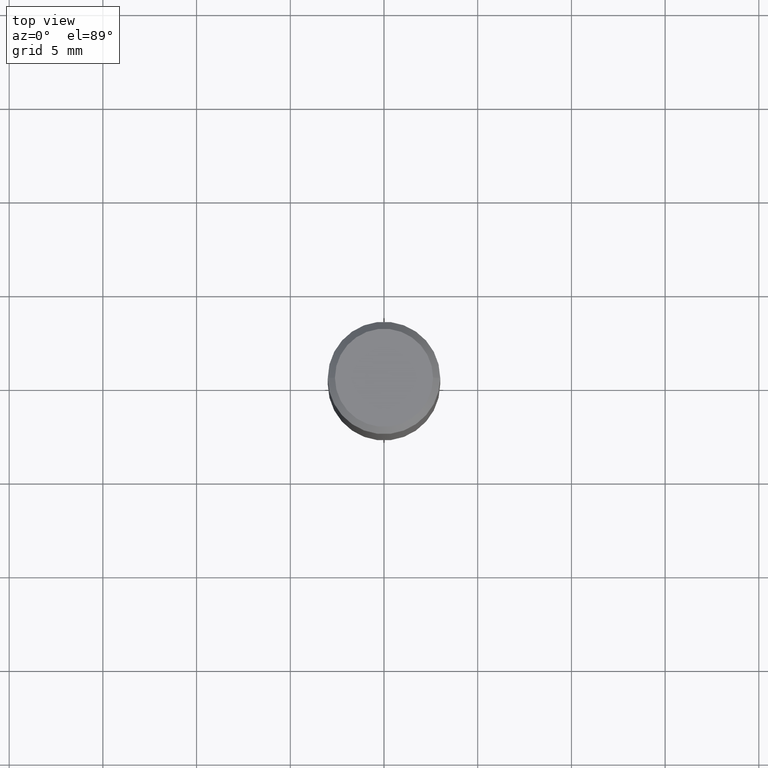
[diagram: clean part render]
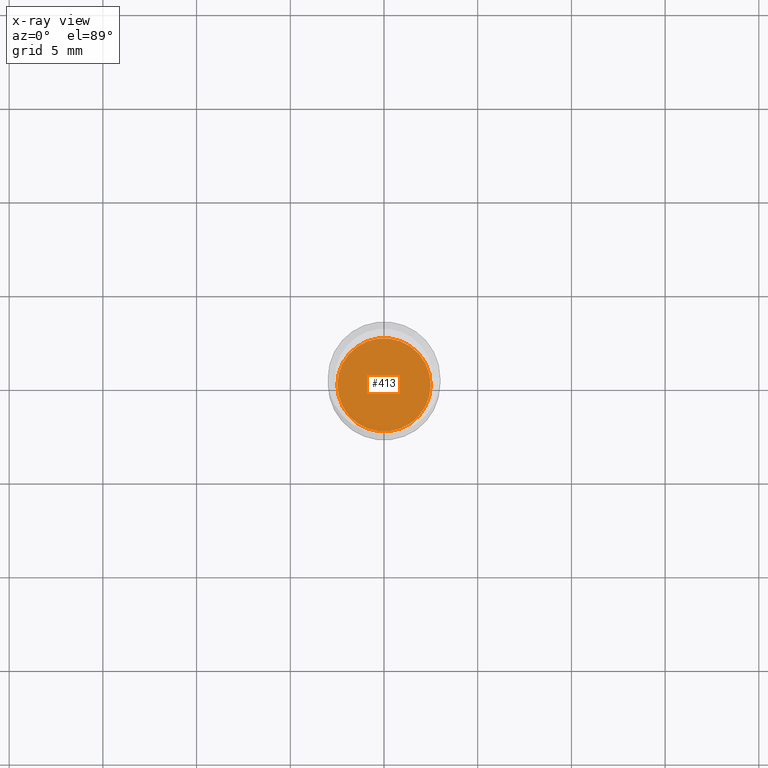
[diagram: x-ray — body ghosted, one internal face saturated and labeled with its STEP entity id]
A machine part, top view, then the same camera in x-ray: the body is ghosted and one INTERNAL B-rep face — a face not visible from any outside direction — is saturated and labeled: STEP entity #413.
In plain terms, the highlighted planar face has unit normal (-0, 0, 1).
Its self-contained STEP definition (entity closure, byte-faithful):
#2 = AXIS2_PLACEMENT_3D ( 'NONE', #228, #89, #384 ) ;
#16 = DIRECTION ( 'NONE',  ( -2.445468806185136597E-29, 3.491481338843145583E-15, 1.000000000000000000 ) ) ;
#17 = EDGE_LOOP ( 'NONE', ( #387, #392 ) ) ;
#35 = AXIS2_PLACEMENT_3D ( 'NONE', #427, #422, #313 ) ;
#40 = AXIS2_PLACEMENT_3D ( 'NONE', #456, #16, #53 ) ;
#53 = DIRECTION ( 'NONE',  ( 1.000000000000000000, -6.982962677686265133E-15, 0.000000000000000000 ) ) ;
#82 = VERTEX_POINT ( 'NONE', #314 ) ;
#89 = DIRECTION ( 'NONE',  ( -2.438088387897960049E-29, 3.491481338843145188E-15, 1.000000000000000000 ) ) ;
#101 = CIRCLE ( 'NONE', #35, 0.09794999999999999540 ) ;
#134 = CARTESIAN_POINT ( 'NONE',  ( 0.09794999999999999540, -3.721919107206791548E-15, -0.8701000000000002066 ) ) ;
#214 = EDGE_CURVE ( 'NONE', #82, #383, #284, .T. ) ;
#228 = CARTESIAN_POINT ( 'NONE',  ( 2.127802408261687534E-29, -3.037937912927421601E-15, -0.8701000000000000956 ) ) ;
#274 = PLANE ( 'NONE',  #2 ) ;
#284 = CIRCLE ( 'NONE', #40, 0.09794999999999999540 ) ;
#313 = DIRECTION ( 'NONE',  ( 1.000000000000000000, -6.982962677686265133E-15, 0.000000000000000000 ) ) ;
#314 = CARTESIAN_POINT ( 'NONE',  ( -0.09794999999999999540, -2.339312076076292793E-15, -0.8701000000000002066 ) ) ;
#366 = EDGE_CURVE ( 'NONE', #383, #82, #101, .T. ) ;
#375 = FACE_OUTER_BOUND ( 'NONE', #17, .T. ) ;
#383 = VERTEX_POINT ( 'NONE', #134 ) ;
#384 = DIRECTION ( 'NONE',  ( 1.000000000000000000, -6.982962677686265922E-15, 4.876176775795935793E-29 ) ) ;
#387 = ORIENTED_EDGE ( 'NONE', *, *, #366, .F. ) ;
#392 = ORIENTED_EDGE ( 'NONE', *, *, #214, .F. ) ;
#413 = ADVANCED_FACE ( 'NONE', ( #375 ), #274, .F. ) ;
#422 = DIRECTION ( 'NONE',  ( -2.445468806185136597E-29, 3.491481338843145583E-15, 1.000000000000000000 ) ) ;
#427 = CARTESIAN_POINT ( 'NONE',  ( 2.127802408261687814E-29, -3.037937912927421995E-15, -0.8701000000000002066 ) ) ;
#456 = CARTESIAN_POINT ( 'NONE',  ( 2.127802408261687814E-29, -3.037937912927421995E-15, -0.8701000000000002066 ) ) ;